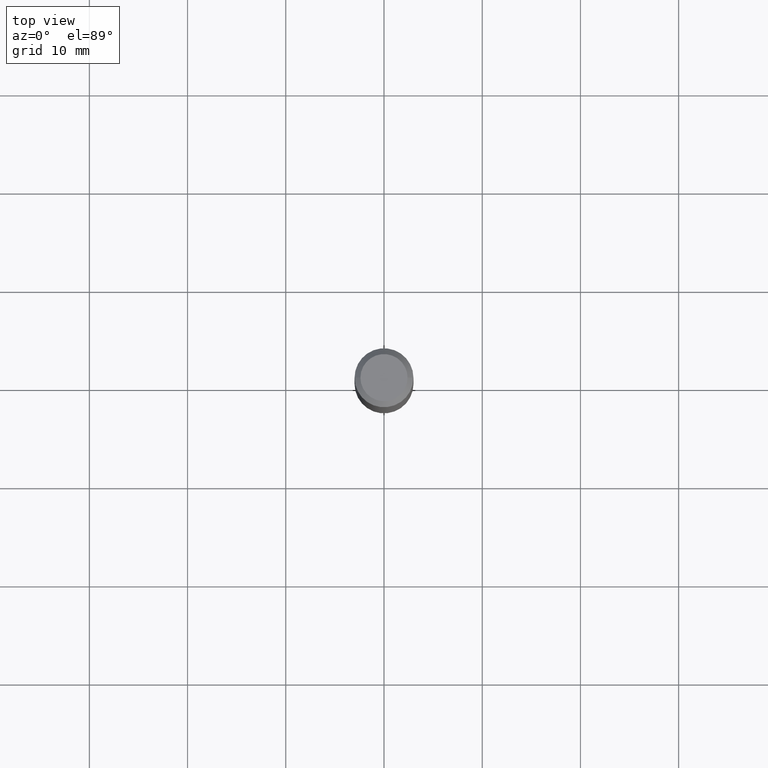
[diagram: clean part render]
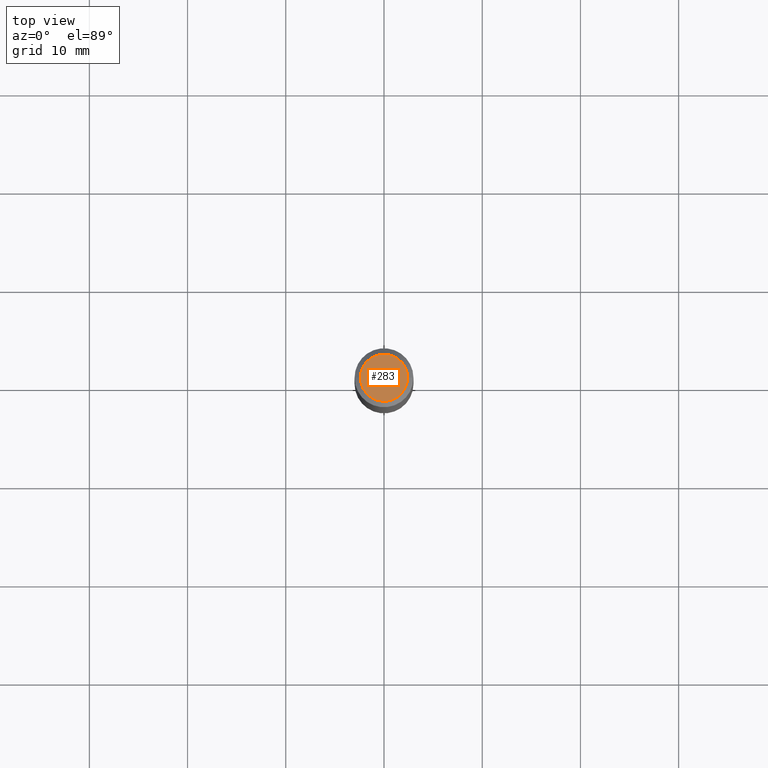
[diagram: same view with one face highlighted and labeled with its STEP entity id]
A machine part, top view. The second image highlights one B-rep face of the part: STEP entity #283.
In plain terms, the highlighted planar face has unit normal (0, -0, -1).
Its self-contained STEP definition (entity closure, byte-faithful):
#41 = ORIENTED_EDGE ( 'NONE', *, *, #314, .T. ) ;
#52 = CARTESIAN_POINT ( 'NONE',  ( 0.09447999999999998066, -7.704367267948738690E-16, -2.700101262759583929E-17 ) ) ;
#83 = DIRECTION ( 'NONE',  ( 1.000000000000000000, -6.982962677686267499E-15, 4.875432709231658792E-29 ) ) ;
#104 = DIRECTION ( 'NONE',  ( -2.445468806185136597E-29, 3.491481338843145583E-15, 1.000000000000000000 ) ) ;
#111 = EDGE_LOOP ( 'NONE', ( #41, #267 ) ) ;
#120 = CARTESIAN_POINT ( 'NONE',  ( 6.603013411620882309E-46, -9.427353171913646324E-32, -2.700101262760083747E-17 ) ) ;
#122 = AXIS2_PLACEMENT_3D ( 'NONE', #160, #126, #247 ) ;
#126 = DIRECTION ( 'NONE',  ( 2.438088387897960049E-29, -3.491481338843145188E-15, -1.000000000000000000 ) ) ;
#133 = DIRECTION ( 'NONE',  ( 1.000000000000000000, -6.982962677686267499E-15, 4.875432709231658792E-29 ) ) ;
#153 = VERTEX_POINT ( 'NONE', #52 ) ;
#160 = CARTESIAN_POINT ( 'NONE',  ( 3.301506705810441154E-46, -4.713676585956823162E-32, -1.350050631380041873E-17 ) ) ;
#196 = FACE_OUTER_BOUND ( 'NONE', #111, .T. ) ;
#201 = AXIS2_PLACEMENT_3D ( 'NONE', #234, #104, #133 ) ;
#234 = CARTESIAN_POINT ( 'NONE',  ( 6.603013411620882309E-46, -9.427353171913646324E-32, -2.700101262760083747E-17 ) ) ;
#247 = DIRECTION ( 'NONE',  ( -1.000000000000000000, 6.982962677686265922E-15, -4.876176775795935793E-29 ) ) ;
#267 = ORIENTED_EDGE ( 'NONE', *, *, #274, .T. ) ;
#274 = EDGE_CURVE ( 'NONE', #153, #438, #394, .T. ) ;
#283 = ADVANCED_FACE ( 'NONE', ( #196 ), #349, .F. ) ;
#314 = EDGE_CURVE ( 'NONE', #438, #153, #379, .T. ) ;
#349 = PLANE ( 'NONE',  #122 ) ;
#379 = CIRCLE ( 'NONE', #201, 0.09447999999999998066 ) ;
#394 = CIRCLE ( 'NONE', #421, 0.09447999999999998066 ) ;
#421 = AXIS2_PLACEMENT_3D ( 'NONE', #120, #467, #83 ) ;
#438 = VERTEX_POINT ( 'NONE', #440 ) ;
#440 = CARTESIAN_POINT ( 'NONE',  ( -0.09447999999999998066, 7.009847083995354710E-16, -2.700101262760559836E-17 ) ) ;
#467 = DIRECTION ( 'NONE',  ( -2.445468806185136597E-29, 3.491481338843145583E-15, 1.000000000000000000 ) ) ;